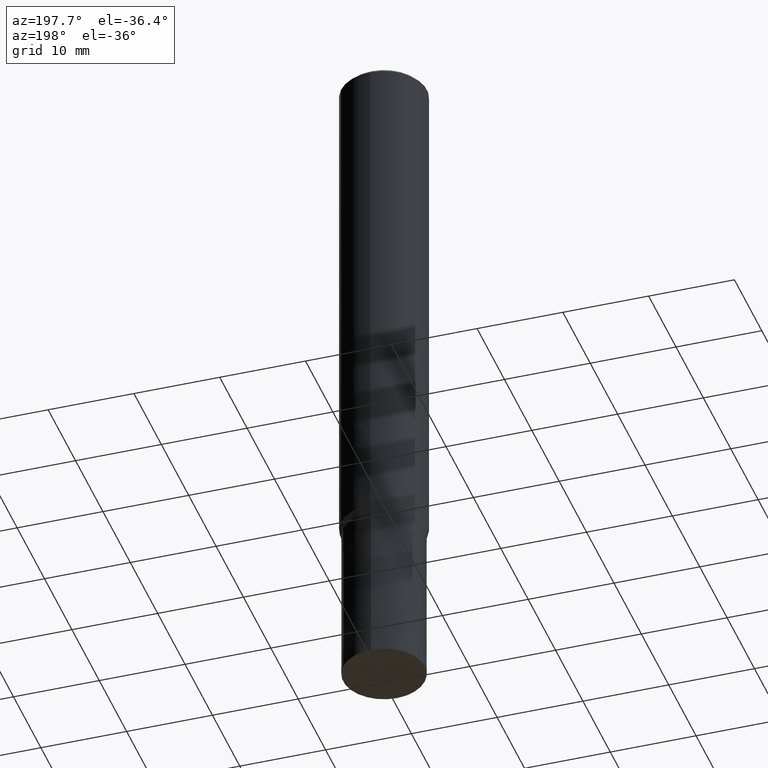
[diagram: clean part render]
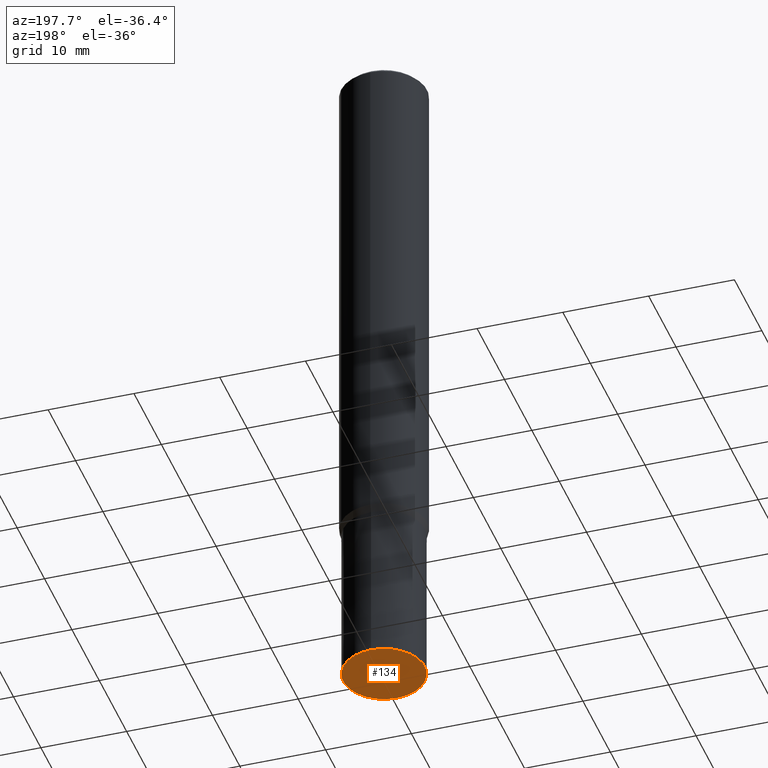
[diagram: same view with one face highlighted and labeled with its STEP entity id]
A machine part, auxiliary view. The second image highlights one B-rep face of the part: STEP entity #134.
In plain terms, the highlighted planar face has unit normal (0, 0, -1).
Its self-contained STEP definition (entity closure, byte-faithful):
#94=VERTEX_POINT('',#215);
#96=EDGE_CURVE('',#152,#94,#217,.T.);
#134=ADVANCED_FACE('',(#261),#262,.T.);
#152=VERTEX_POINT('',#284);
#160=EDGE_CURVE('',#94,#152,#292,.T.);
#215=CARTESIAN_POINT('',(5.81688018065629E-016,-4.75,-80.0));
#217=CIRCLE('',#348,4.75);
#261=FACE_OUTER_BOUND('',#400,.T.);
#262=PLANE('',#401);
#284=CARTESIAN_POINT('',(0.0,4.75,-80.0));
#292=CIRCLE('',#435,4.75);
#348=AXIS2_PLACEMENT_3D('',#485,#486,#487);
#400=EDGE_LOOP('',(#547,#548));
#401=AXIS2_PLACEMENT_3D('',#549,#550,#551);
#435=AXIS2_PLACEMENT_3D('',#590,#591,#592);
#485=CARTESIAN_POINT('',(0.0,0.0,-80.0));
#486=DIRECTION('',(0.0,0.0,-1.0));
#487=DIRECTION('',(0.0,1.0,0.0));
#547=ORIENTED_EDGE('',*,*,#96,.T.);
#548=ORIENTED_EDGE('',*,*,#160,.T.);
#549=CARTESIAN_POINT('',(0.0,2.3725,-80.0));
#550=DIRECTION('',(0.0,0.0,-1.0));
#551=DIRECTION('',(0.0,1.0,0.0));
#590=CARTESIAN_POINT('',(0.0,0.0,-80.0));
#591=DIRECTION('',(0.0,0.0,-1.0));
#592=DIRECTION('',(0.0,1.0,0.0));